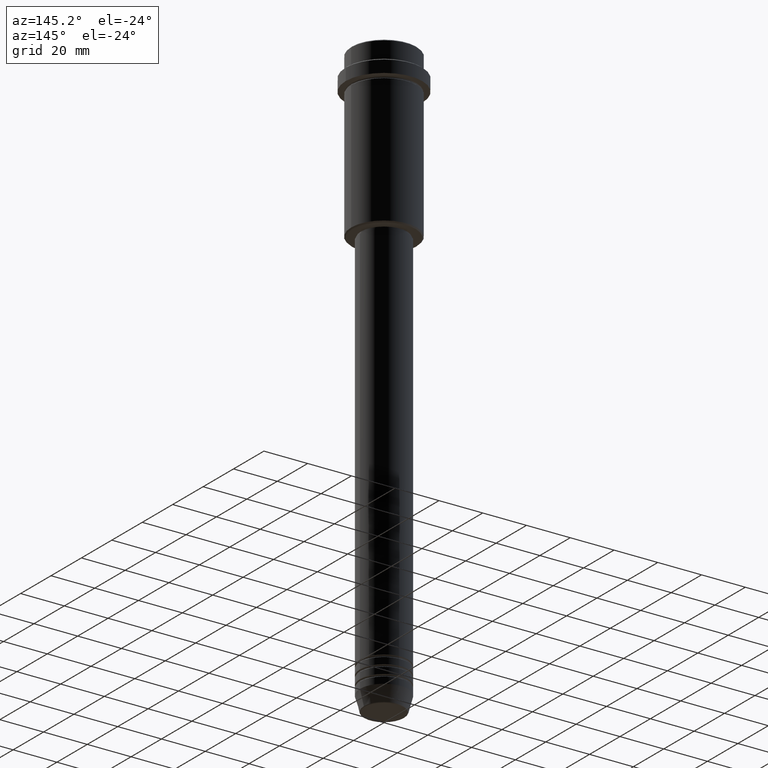
[diagram: clean part render]
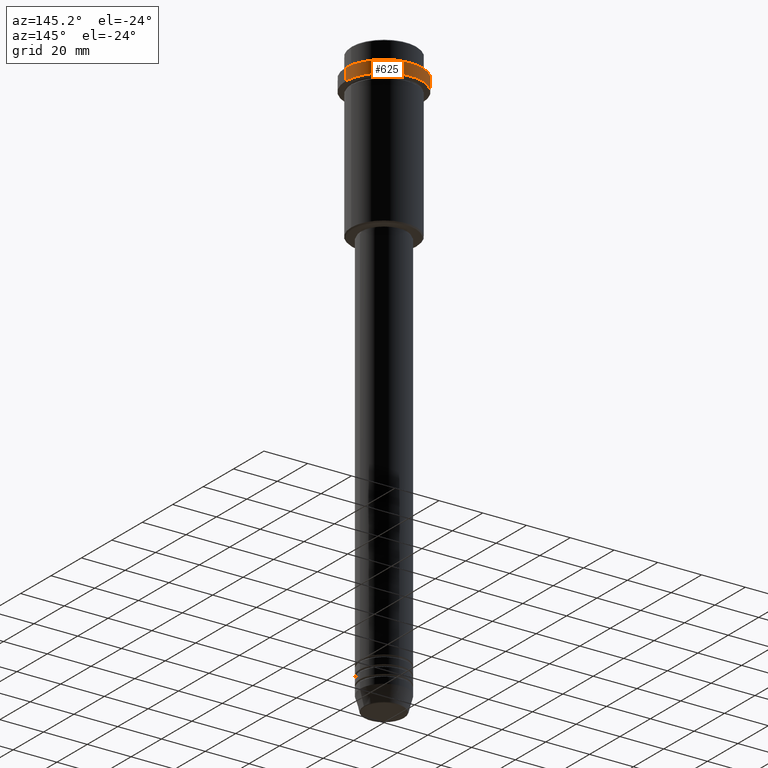
[diagram: same view with one face highlighted and labeled with its STEP entity id]
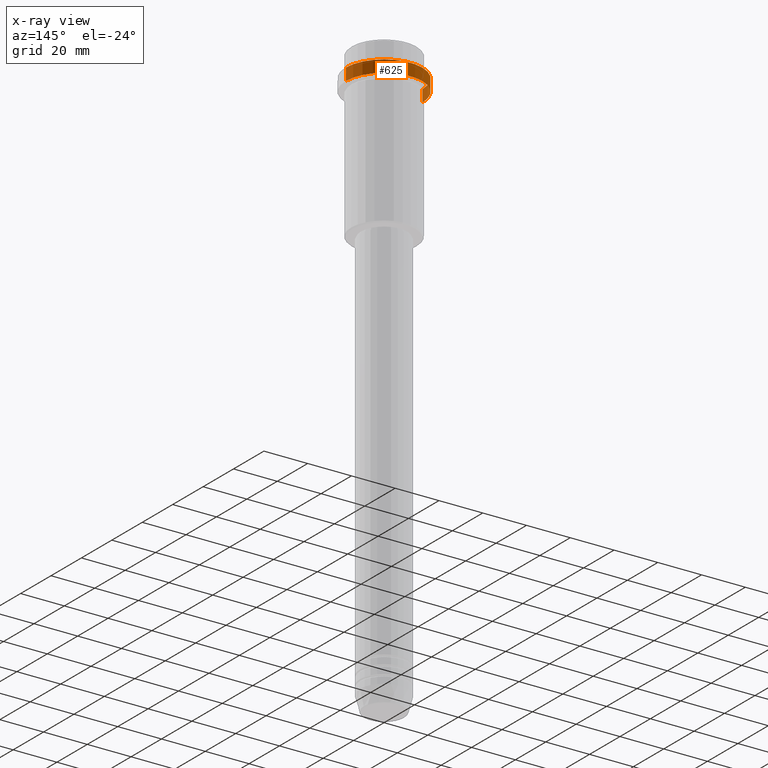
[diagram: x-ray of the same camera — body ghosted, the highlighted face saturated]
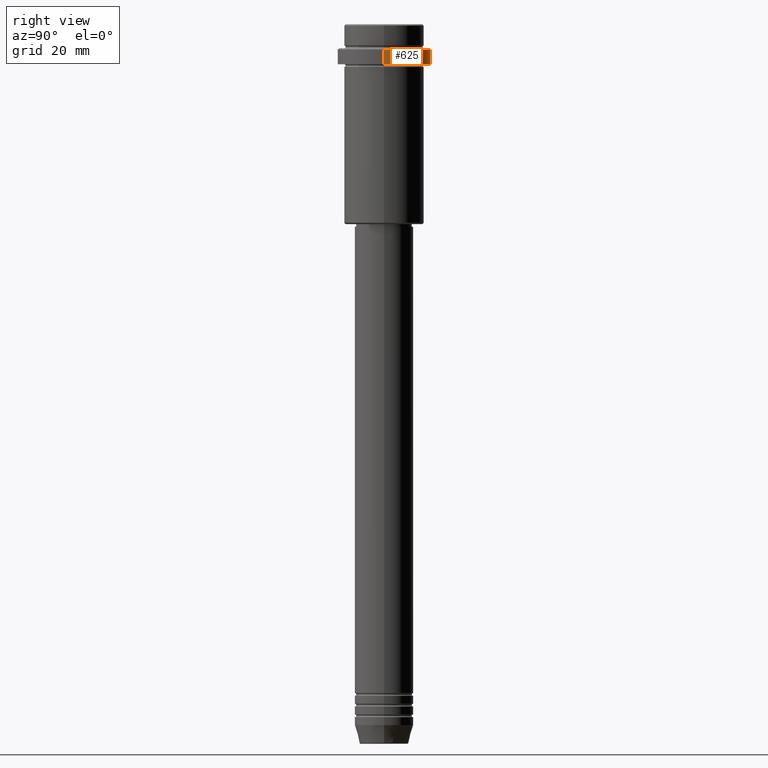
[diagram: same view with one face highlighted and labeled with its STEP entity id]
A machine part, auxiliary view. The second image highlights one B-rep face of the part: STEP entity #625.
The next image is the same camera in x-ray: the body ghosted, the highlighted face saturated — about 0% of this face is hidden behind the body in this view.
A second angle (right view) of the same face is appended — the face is thin or edge-on in the first view.
In plain terms, the highlighted cylindrical surface (partial cylindrical patch) has radius 17.5 mm, axis along (-0, -0, 1).
Its self-contained STEP definition (entity closure, byte-faithful):
#7 = VECTOR ( 'NONE', #860, 1000.000000000000000 ) ;
#17 = CARTESIAN_POINT ( 'NONE',  ( 17.50000000000000000, 0.000000000000000000, 0.000000000000000000 ) ) ;
#31 = AXIS2_PLACEMENT_3D ( 'NONE', #1232, #114, #267 ) ;
#91 = DIRECTION ( 'NONE',  ( -0.000000000000000000, -0.000000000000000000, 1.000000000000000000 ) ) ;
#114 = DIRECTION ( 'NONE',  ( 0.000000000000000000, 0.000000000000000000, -1.000000000000000000 ) ) ;
#262 = VERTEX_POINT ( 'NONE', #1132 ) ;
#267 = DIRECTION ( 'NONE',  ( 1.000000000000000000, 0.000000000000000000, 0.000000000000000000 ) ) ;
#276 = CARTESIAN_POINT ( 'NONE',  ( -17.50000000000000000, 2.143131898507868248E-15, -15.00000000000000178 ) ) ;
#305 = EDGE_CURVE ( 'NONE', #644, #262, #570, .T. ) ;
#328 = CARTESIAN_POINT ( 'NONE',  ( 0.000000000000000000, 0.000000000000000000, 0.000000000000000000 ) ) ;
#361 = ORIENTED_EDGE ( 'NONE', *, *, #384, .T. ) ;
#384 = EDGE_CURVE ( 'NONE', #262, #867, #727, .T. ) ;
#433 = ORIENTED_EDGE ( 'NONE', *, *, #305, .T. ) ;
#468 = EDGE_CURVE ( 'NONE', #1242, #867, #1320, .T. ) ;
#481 = EDGE_LOOP ( 'NONE', ( #1034, #433, #361, #502 ) ) ;
#502 = ORIENTED_EDGE ( 'NONE', *, *, #468, .F. ) ;
#503 = DIRECTION ( 'NONE',  ( -0.000000000000000000, -0.000000000000000000, 1.000000000000000000 ) ) ;
#521 = CARTESIAN_POINT ( 'NONE',  ( -17.50000000000000000, 2.143131898507868248E-15, 0.000000000000000000 ) ) ;
#570 = LINE ( 'NONE', #521, #700 ) ;
#625 = ADVANCED_FACE ( 'NONE', ( #758 ), #1176, .T. ) ;
#644 = VERTEX_POINT ( 'NONE', #276 ) ;
#700 = VECTOR ( 'NONE', #503, 1000.000000000000000 ) ;
#701 = CARTESIAN_POINT ( 'NONE',  ( 0.000000000000000000, 0.000000000000000000, -15.00000000000000178 ) ) ;
#709 = DIRECTION ( 'NONE',  ( -0.000000000000000000, -0.000000000000000000, 1.000000000000000000 ) ) ;
#721 = AXIS2_PLACEMENT_3D ( 'NONE', #328, #91, #1297 ) ;
#727 = CIRCLE ( 'NONE', #31, 17.50000000000000000 ) ;
#758 = FACE_OUTER_BOUND ( 'NONE', #481, .T. ) ;
#851 = AXIS2_PLACEMENT_3D ( 'NONE', #701, #709, #991 ) ;
#860 = DIRECTION ( 'NONE',  ( -0.000000000000000000, -0.000000000000000000, 1.000000000000000000 ) ) ;
#867 = VERTEX_POINT ( 'NONE', #1398 ) ;
#876 = CARTESIAN_POINT ( 'NONE',  ( 17.50000000000000000, 0.000000000000000000, -15.00000000000000178 ) ) ;
#991 = DIRECTION ( 'NONE',  ( 1.000000000000000000, 0.000000000000000000, 0.000000000000000000 ) ) ;
#1034 = ORIENTED_EDGE ( 'NONE', *, *, #1364, .T. ) ;
#1112 = CIRCLE ( 'NONE', #851, 17.50000000000000000 ) ;
#1132 = CARTESIAN_POINT ( 'NONE',  ( -17.50000000000000000, 2.143131898507868248E-15, -9.500000000000028422 ) ) ;
#1176 = CYLINDRICAL_SURFACE ( 'NONE', #721, 17.50000000000000000 ) ;
#1232 = CARTESIAN_POINT ( 'NONE',  ( 0.000000000000000000, 0.000000000000000000, -9.500000000000028422 ) ) ;
#1242 = VERTEX_POINT ( 'NONE', #876 ) ;
#1297 = DIRECTION ( 'NONE',  ( 1.000000000000000000, 0.000000000000000000, 0.000000000000000000 ) ) ;
#1320 = LINE ( 'NONE', #17, #7 ) ;
#1364 = EDGE_CURVE ( 'NONE', #1242, #644, #1112, .T. ) ;
#1398 = CARTESIAN_POINT ( 'NONE',  ( 17.50000000000000000, 0.000000000000000000, -9.500000000000028422 ) ) ;